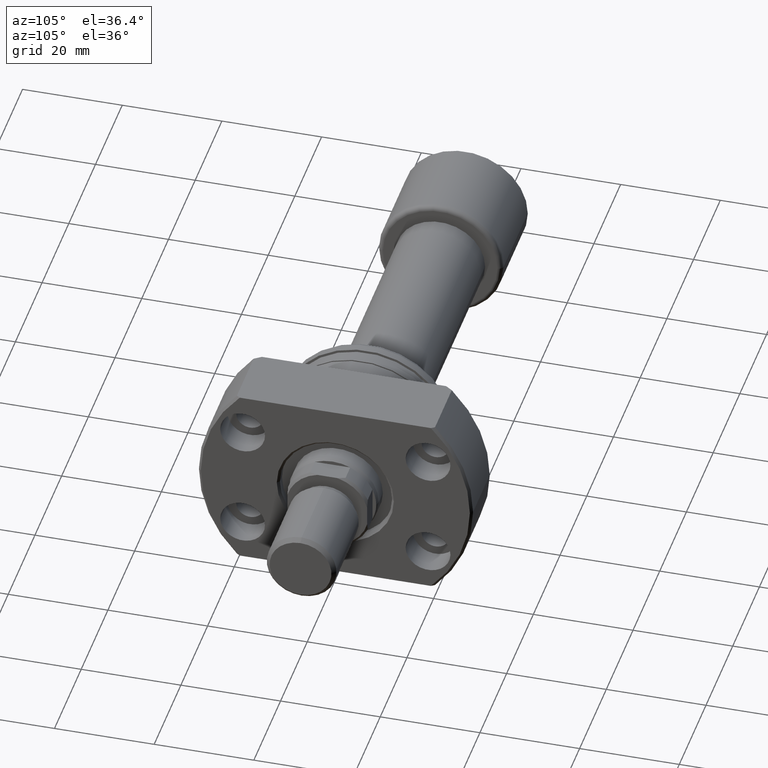
[diagram: clean part render]
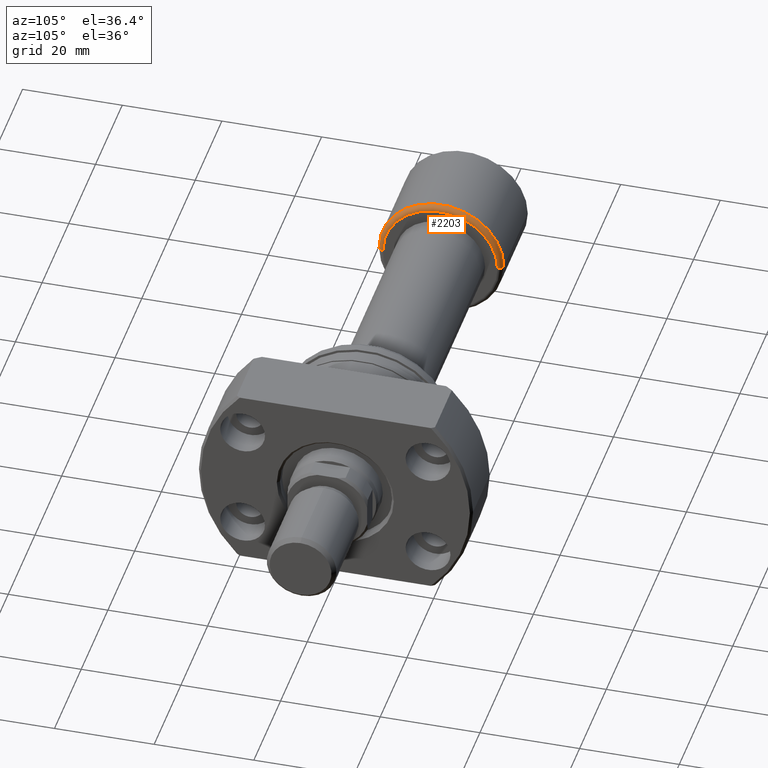
[diagram: same view with one face highlighted and labeled with its STEP entity id]
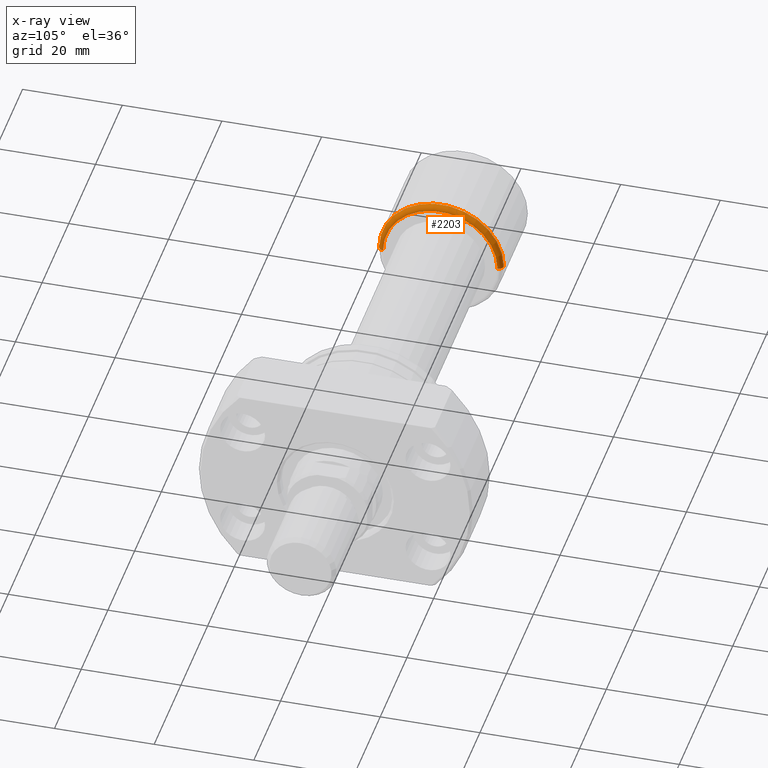
[diagram: x-ray of the same camera — body ghosted, the highlighted face saturated]
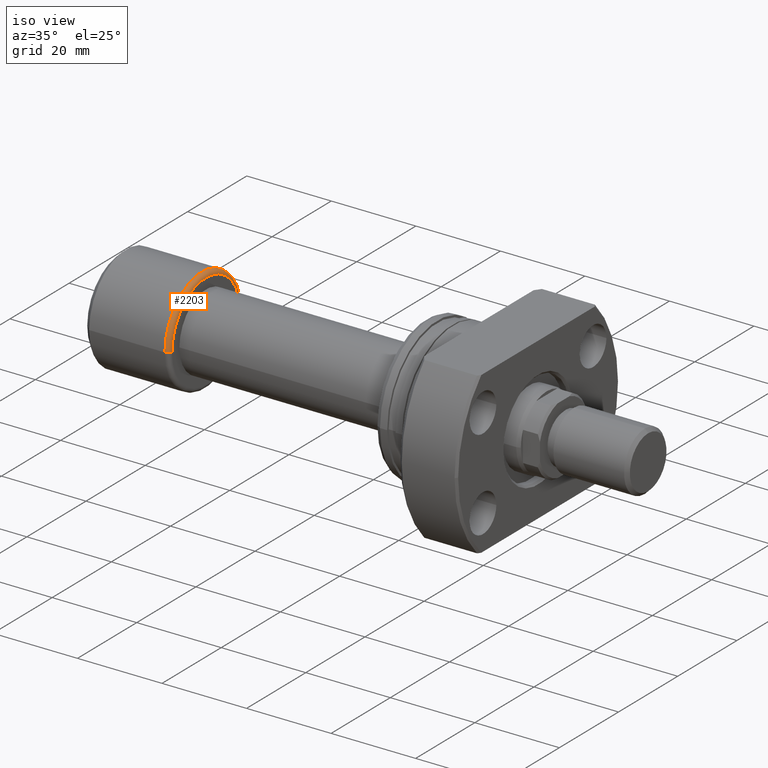
[diagram: same view with one face highlighted and labeled with its STEP entity id]
A machine part, auxiliary view. The second image highlights one B-rep face of the part: STEP entity #2203.
The next image is the same camera in x-ray: the body ghosted, the highlighted face saturated — about 0% of this face is hidden behind the body in this view.
A second angle (iso view) of the same face is appended — the face is thin or edge-on in the first view.
In plain terms, the highlighted toroidal blend (fillet) surface has major radius 11.5 mm and minor (blend) radius 1 mm.
Its self-contained STEP definition (entity closure, byte-faithful):
#71 = CIRCLE ( 'NONE', #179, 12.50000000000000000 ) ;
#179 = AXIS2_PLACEMENT_3D ( 'NONE', #2939, #3486, #1513 ) ;
#441 = CARTESIAN_POINT ( 'NONE',  ( 20.39999999999999503, -11.50000000000000000, 0.000000000000000000 ) ) ;
#573 = FACE_OUTER_BOUND ( 'NONE', #1381, .T. ) ;
#591 = ORIENTED_EDGE ( 'NONE', *, *, #1124, .F. ) ;
#756 = DIRECTION ( 'NONE',  ( 1.309811581274509052E-33, -1.224646799147353207E-16, 1.000000000000000000 ) ) ;
#843 = DIRECTION ( 'NONE',  ( 0.000000000000000000, -1.000000000000000000, 0.000000000000000000 ) ) ;
#878 = ORIENTED_EDGE ( 'NONE', *, *, #1464, .F. ) ;
#919 = AXIS2_PLACEMENT_3D ( 'NONE', #1568, #1240, #2380 ) ;
#935 = CARTESIAN_POINT ( 'NONE',  ( 19.39999999999999503, 12.50000000000000000, 1.530808498934191521E-15 ) ) ;
#1039 = AXIS2_PLACEMENT_3D ( 'NONE', #2843, #1474, #3130 ) ;
#1124 = EDGE_CURVE ( 'NONE', #2419, #1906, #2038, .T. ) ;
#1166 = TOROIDAL_SURFACE ( 'NONE', #1039, 11.50000000000000000, 1.000000000000000888 ) ;
#1240 = DIRECTION ( 'NONE',  ( 0.000000000000000000, 0.000000000000000000, -1.000000000000000000 ) ) ;
#1381 = EDGE_LOOP ( 'NONE', ( #1608, #1726, #878, #591 ) ) ;
#1417 = EDGE_CURVE ( 'NONE', #2419, #2041, #1565, .T. ) ;
#1464 = EDGE_CURVE ( 'NONE', #1906, #2727, #71, .T. ) ;
#1474 = DIRECTION ( 'NONE',  ( -1.000000000000000000, -1.069542322069065801E-17, -0.000000000000000000 ) ) ;
#1513 = DIRECTION ( 'NONE',  ( 0.000000000000000000, -1.000000000000000000, 0.000000000000000000 ) ) ;
#1565 = CIRCLE ( 'NONE', #1738, 11.50000000000000000 ) ;
#1568 = CARTESIAN_POINT ( 'NONE',  ( 19.39999999999999503, -11.50000000000000000, 0.000000000000000000 ) ) ;
#1608 = ORIENTED_EDGE ( 'NONE', *, *, #1417, .T. ) ;
#1726 = ORIENTED_EDGE ( 'NONE', *, *, #2570, .T. ) ;
#1738 = AXIS2_PLACEMENT_3D ( 'NONE', #2751, #2200, #843 ) ;
#1893 = DIRECTION ( 'NONE',  ( 0.000000000000000000, -1.000000000000000000, -1.224646799147353454E-16 ) ) ;
#1906 = VERTEX_POINT ( 'NONE', #3195 ) ;
#1989 = AXIS2_PLACEMENT_3D ( 'NONE', #3304, #756, #1893 ) ;
#2038 = CIRCLE ( 'NONE', #919, 1.000000000000000888 ) ;
#2041 = VERTEX_POINT ( 'NONE', #2504 ) ;
#2113 = CIRCLE ( 'NONE', #1989, 1.000000000000000888 ) ;
#2200 = DIRECTION ( 'NONE',  ( -1.000000000000000000, -1.069542322069065801E-17, -0.000000000000000000 ) ) ;
#2203 = ADVANCED_FACE ( 'NONE', ( #573 ), #1166, .T. ) ;
#2380 = DIRECTION ( 'NONE',  ( -1.000000000000000000, 0.000000000000000000, 0.000000000000000000 ) ) ;
#2419 = VERTEX_POINT ( 'NONE', #441 ) ;
#2504 = CARTESIAN_POINT ( 'NONE',  ( 20.39999999999999503, 11.50000000000000000, 1.469576158976823947E-15 ) ) ;
#2570 = EDGE_CURVE ( 'NONE', #2041, #2727, #2113, .T. ) ;
#2727 = VERTEX_POINT ( 'NONE', #935 ) ;
#2751 = CARTESIAN_POINT ( 'NONE',  ( 20.39999999999999503, 2.181866337020893623E-16, 0.000000000000000000 ) ) ;
#2843 = CARTESIAN_POINT ( 'NONE',  ( 19.39999999999999503, 0.000000000000000000, 0.000000000000000000 ) ) ;
#2939 = CARTESIAN_POINT ( 'NONE',  ( 19.39999999999999503, 2.074912104813986935E-16, 0.000000000000000000 ) ) ;
#3130 = DIRECTION ( 'NONE',  ( 1.069542322069065955E-17, -1.000000000000000000, 0.000000000000000000 ) ) ;
#3195 = CARTESIAN_POINT ( 'NONE',  ( 19.39999999999999503, -12.50000000000000000, 0.000000000000000000 ) ) ;
#3304 = CARTESIAN_POINT ( 'NONE',  ( 19.39999999999999503, 11.50000000000000000, 1.408343819019456176E-15 ) ) ;
#3486 = DIRECTION ( 'NONE',  ( -1.000000000000000000, -1.069542322069065801E-17, -0.000000000000000000 ) ) ;